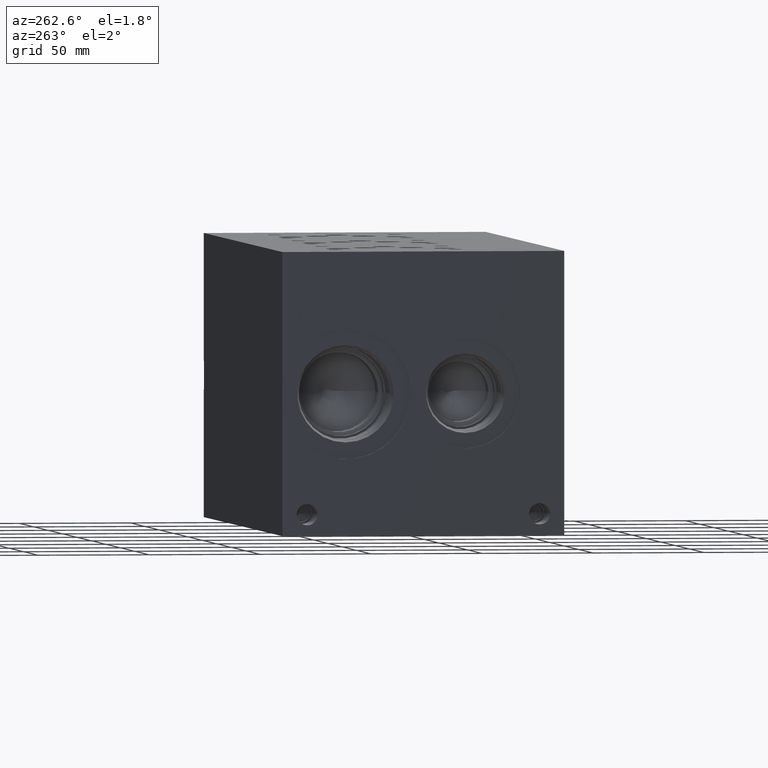
[diagram: clean part render]
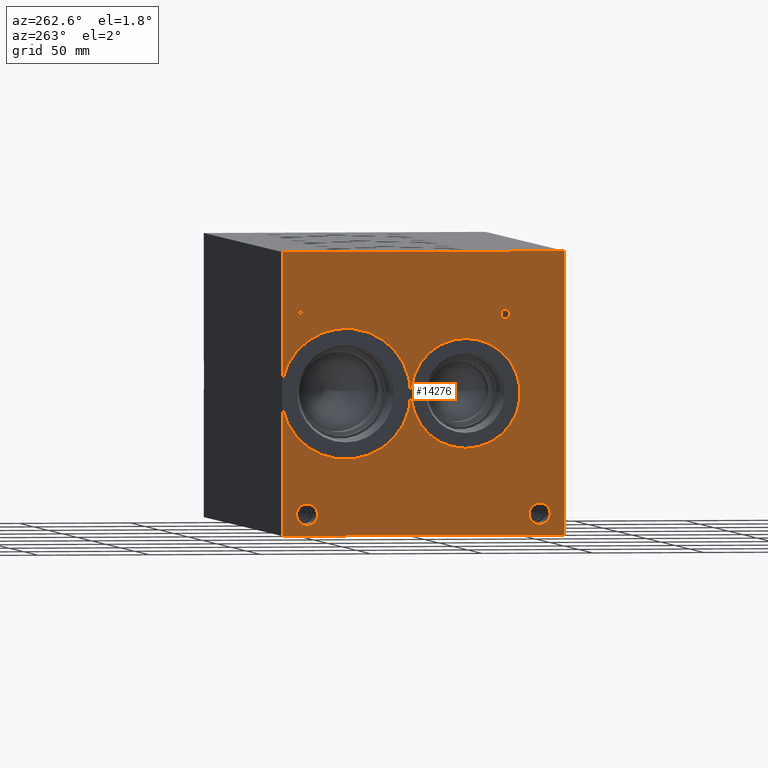
[diagram: same view with one face highlighted and labeled with its STEP entity id]
A machine part, auxiliary view. The second image highlights one B-rep face of the part: STEP entity #14276.
In plain terms, the highlighted planar face has unit normal (-1, 0, 0).
Its self-contained STEP definition (entity closure, byte-faithful):
#216=CIRCLE('',#15065,29.2862);
#217=CIRCLE('',#15066,4.7625);
#218=CIRCLE('',#15067,4.7625);
#219=CIRCLE('',#15068,4.7625);
#220=CIRCLE('',#15069,4.7625);
#221=CIRCLE('',#15070,24.5618);
#222=CIRCLE('',#15071,24.5618);
#605=FACE_BOUND('',#2146,.T.);
#606=FACE_BOUND('',#2147,.T.);
#607=FACE_BOUND('',#2148,.T.);
#608=FACE_BOUND('',#2149,.T.);
#609=FACE_BOUND('',#2150,.T.);
#750=B_SPLINE_CURVE_WITH_KNOTS('',2,(#19702,#19703,#19704,#19705),
 .UNSPECIFIED.,.F.,.F.,(3,1,3),(0.,1.,2.),.UNSPECIFIED.);
#752=B_SPLINE_CURVE_WITH_KNOTS('',2,(#19723,#19724,#19725,#19726),
 .UNSPECIFIED.,.F.,.F.,(3,1,3),(0.,1.,2.),.UNSPECIFIED.);
#754=B_SPLINE_CURVE_WITH_KNOTS('',2,(#19772,#19773,#19774,#19775),
 .UNSPECIFIED.,.F.,.F.,(3,1,3),(0.,1.,2.),.UNSPECIFIED.);
#756=B_SPLINE_CURVE_WITH_KNOTS('',2,(#19790,#19791,#19792,#19793),
 .UNSPECIFIED.,.F.,.F.,(3,1,3),(0.,1.,2.),.UNSPECIFIED.);
#1355=FACE_OUTER_BOUND('',#2145,.T.);
#2145=EDGE_LOOP('',(#9402,#9403,#9404,#9405,#9406,#9407));
#2146=EDGE_LOOP('',(#9408,#9409,#9410,#9411,#9412,#9413,#9414,#9415));
#2147=EDGE_LOOP('',(#9416,#9417));
#2148=EDGE_LOOP('',(#9418,#9419));
#2149=EDGE_LOOP('',(#9420,#9421));
#2150=EDGE_LOOP('',(#9422,#9423,#9424,#9425,#9426,#9427,#9428,#9429,#9430));
#3057=LINE('',#19552,#4368);
#3061=LINE('',#19560,#4372);
#3064=LINE('',#19566,#4375);
#3067=LINE('',#19572,#4378);
#3070=LINE('',#19578,#4381);
#3073=LINE('',#19584,#4384);
#3076=LINE('',#19590,#4387);
#3079=LINE('',#19595,#4390);
#3097=LINE('',#19735,#4408);
#3100=LINE('',#19741,#4411);
#3103=LINE('',#19747,#4414);
#3106=LINE('',#19753,#4417);
#3109=LINE('',#19759,#4420);
#3113=LINE('',#19804,#4424);
#3114=LINE('',#19806,#4425);
#3115=LINE('',#19808,#4426);
#3116=LINE('',#19810,#4427);
#3117=LINE('',#19811,#4428);
#4368=VECTOR('',#16117,10.);
#4372=VECTOR('',#16123,10.);
#4375=VECTOR('',#16128,10.);
#4378=VECTOR('',#16133,10.);
#4381=VECTOR('',#16138,10.);
#4384=VECTOR('',#16143,10.);
#4387=VECTOR('',#16148,10.);
#4390=VECTOR('',#16153,10.);
#4408=VECTOR('',#16181,10.);
#4411=VECTOR('',#16186,10.);
#4414=VECTOR('',#16191,10.);
#4417=VECTOR('',#16196,10.);
#4420=VECTOR('',#16201,10.);
#4424=VECTOR('',#16211,10.);
#4425=VECTOR('',#16212,10.);
#4426=VECTOR('',#16213,10.);
#4427=VECTOR('',#16214,10.);
#4428=VECTOR('',#16215,10.);
#5678=VERTEX_POINT('',#19550);
#5679=VERTEX_POINT('',#19551);
#5682=VERTEX_POINT('',#19559);
#5684=VERTEX_POINT('',#19565);
#5686=VERTEX_POINT('',#19571);
#5688=VERTEX_POINT('',#19577);
#5690=VERTEX_POINT('',#19583);
#5692=VERTEX_POINT('',#19589);
#5708=VERTEX_POINT('',#19700);
#5709=VERTEX_POINT('',#19701);
#5712=VERTEX_POINT('',#19722);
#5714=VERTEX_POINT('',#19734);
#5716=VERTEX_POINT('',#19740);
#5718=VERTEX_POINT('',#19746);
#5720=VERTEX_POINT('',#19752);
#5722=VERTEX_POINT('',#19758);
#5724=VERTEX_POINT('',#19771);
#5726=VERTEX_POINT('',#19800);
#5727=VERTEX_POINT('',#19801);
#5728=VERTEX_POINT('',#19803);
#5729=VERTEX_POINT('',#19805);
#5730=VERTEX_POINT('',#19807);
#5731=VERTEX_POINT('',#19809);
#5732=VERTEX_POINT('',#19812);
#5733=VERTEX_POINT('',#19813);
#5734=VERTEX_POINT('',#19816);
#5735=VERTEX_POINT('',#19817);
#5736=VERTEX_POINT('',#19820);
#5737=VERTEX_POINT('',#19821);
#7133=EDGE_CURVE('',#5678,#5679,#3057,.T.);
#7137=EDGE_CURVE('',#5682,#5678,#3061,.T.);
#7140=EDGE_CURVE('',#5684,#5682,#3064,.T.);
#7143=EDGE_CURVE('',#5686,#5684,#3067,.T.);
#7146=EDGE_CURVE('',#5688,#5686,#3070,.T.);
#7149=EDGE_CURVE('',#5690,#5688,#3073,.T.);
#7152=EDGE_CURVE('',#5692,#5690,#3076,.T.);
#7155=EDGE_CURVE('',#5679,#5692,#3079,.T.);
#7178=EDGE_CURVE('',#5708,#5709,#750,.T.);
#7182=EDGE_CURVE('',#5712,#5708,#752,.T.);
#7185=EDGE_CURVE('',#5714,#5712,#3097,.T.);
#7188=EDGE_CURVE('',#5716,#5714,#3100,.T.);
#7191=EDGE_CURVE('',#5718,#5716,#3103,.T.);
#7194=EDGE_CURVE('',#5720,#5718,#3106,.T.);
#7197=EDGE_CURVE('',#5722,#5720,#3109,.T.);
#7200=EDGE_CURVE('',#5724,#5722,#754,.T.);
#7203=EDGE_CURVE('',#5709,#5724,#756,.T.);
#7205=EDGE_CURVE('',#5726,#5727,#216,.T.);
#7206=EDGE_CURVE('',#5728,#5727,#3113,.T.);
#7207=EDGE_CURVE('',#5728,#5729,#3114,.T.);
#7208=EDGE_CURVE('',#5729,#5730,#3115,.T.);
#7209=EDGE_CURVE('',#5731,#5730,#3116,.T.);
#7210=EDGE_CURVE('',#5726,#5731,#3117,.T.);
#7211=EDGE_CURVE('',#5732,#5733,#217,.T.);
#7212=EDGE_CURVE('',#5733,#5732,#218,.T.);
#7213=EDGE_CURVE('',#5734,#5735,#219,.T.);
#7214=EDGE_CURVE('',#5735,#5734,#220,.T.);
#7215=EDGE_CURVE('',#5736,#5737,#221,.T.);
#7216=EDGE_CURVE('',#5737,#5736,#222,.T.);
#9402=ORIENTED_EDGE('',*,*,#7205,.T.);
#9403=ORIENTED_EDGE('',*,*,#7206,.F.);
#9404=ORIENTED_EDGE('',*,*,#7207,.T.);
#9405=ORIENTED_EDGE('',*,*,#7208,.T.);
#9406=ORIENTED_EDGE('',*,*,#7209,.F.);
#9407=ORIENTED_EDGE('',*,*,#7210,.F.);
#9408=ORIENTED_EDGE('',*,*,#7133,.T.);
#9409=ORIENTED_EDGE('',*,*,#7155,.T.);
#9410=ORIENTED_EDGE('',*,*,#7152,.T.);
#9411=ORIENTED_EDGE('',*,*,#7149,.T.);
#9412=ORIENTED_EDGE('',*,*,#7146,.T.);
#9413=ORIENTED_EDGE('',*,*,#7143,.T.);
#9414=ORIENTED_EDGE('',*,*,#7140,.T.);
#9415=ORIENTED_EDGE('',*,*,#7137,.T.);
#9416=ORIENTED_EDGE('',*,*,#7211,.T.);
#9417=ORIENTED_EDGE('',*,*,#7212,.T.);
#9418=ORIENTED_EDGE('',*,*,#7213,.T.);
#9419=ORIENTED_EDGE('',*,*,#7214,.T.);
#9420=ORIENTED_EDGE('',*,*,#7215,.T.);
#9421=ORIENTED_EDGE('',*,*,#7216,.T.);
#9422=ORIENTED_EDGE('',*,*,#7178,.T.);
#9423=ORIENTED_EDGE('',*,*,#7203,.T.);
#9424=ORIENTED_EDGE('',*,*,#7200,.T.);
#9425=ORIENTED_EDGE('',*,*,#7197,.T.);
#9426=ORIENTED_EDGE('',*,*,#7194,.T.);
#9427=ORIENTED_EDGE('',*,*,#7191,.T.);
#9428=ORIENTED_EDGE('',*,*,#7188,.T.);
#9429=ORIENTED_EDGE('',*,*,#7185,.T.);
#9430=ORIENTED_EDGE('',*,*,#7182,.T.);
#13338=PLANE('',#15064);
#14276=ADVANCED_FACE('',(#1355,#605,#606,#607,#608,#609),#13338,.T.);
#15064=AXIS2_PLACEMENT_3D('',#19799,#16207,#16208);
#15065=AXIS2_PLACEMENT_3D('',#19802,#16209,#16210);
#15066=AXIS2_PLACEMENT_3D('',#19814,#16216,#16217);
#15067=AXIS2_PLACEMENT_3D('',#19815,#16218,#16219);
#15068=AXIS2_PLACEMENT_3D('',#19818,#16220,#16221);
#15069=AXIS2_PLACEMENT_3D('',#19819,#16222,#16223);
#15070=AXIS2_PLACEMENT_3D('',#19822,#16224,#16225);
#15071=AXIS2_PLACEMENT_3D('',#19823,#16226,#16227);
#16117=DIRECTION('',(0.,1.,0.));
#16123=DIRECTION('',(0.,3.17280044688052E-15,-1.));
#16128=DIRECTION('',(0.,1.,0.));
#16133=DIRECTION('',(0.,0.,-1.));
#16138=DIRECTION('',(0.,-1.,-3.47984565141734E-15));
#16143=DIRECTION('',(0.,0.,1.));
#16148=DIRECTION('',(0.,1.,8.33818088455555E-15));
#16153=DIRECTION('',(0.,-3.17280044688052E-15,1.));
#16181=DIRECTION('',(0.,-1.,0.));
#16186=DIRECTION('',(0.,-2.79741238752512E-15,1.));
#16191=DIRECTION('',(0.,1.,0.));
#16196=DIRECTION('',(0.,1.876090699025E-15,-1.));
#16201=DIRECTION('',(0.,1.,0.));
#16207=DIRECTION('center_axis',(-1.,0.,0.));
#16208=DIRECTION('ref_axis',(0.,-1.,0.));
#16209=DIRECTION('center_axis',(1.,0.,0.));
#16210=DIRECTION('ref_axis',(0.,0.,1.));
#16211=DIRECTION('',(0.,0.,1.));
#16212=DIRECTION('',(0.,-1.,0.));
#16213=DIRECTION('',(0.,0.,1.));
#16214=DIRECTION('',(0.,-1.,0.));
#16215=DIRECTION('',(0.,0.,1.));
#16216=DIRECTION('center_axis',(1.,0.,0.));
#16217=DIRECTION('ref_axis',(0.,1.,0.));
#16218=DIRECTION('center_axis',(1.,0.,0.));
#16219=DIRECTION('ref_axis',(0.,1.,0.));
#16220=DIRECTION('center_axis',(1.,0.,0.));
#16221=DIRECTION('ref_axis',(0.,1.,0.));
#16222=DIRECTION('center_axis',(1.,0.,0.));
#16223=DIRECTION('ref_axis',(0.,1.,0.));
#16224=DIRECTION('center_axis',(1.,0.,0.));
#16225=DIRECTION('ref_axis',(0.,0.,1.));
#16226=DIRECTION('center_axis',(1.,0.,0.));
#16227=DIRECTION('ref_axis',(0.,0.,1.));
#19550=CARTESIAN_POINT('',(0.,118.569834728547,94.488));
#19551=CARTESIAN_POINT('',(0.,119.413756920087,94.488));
#19552=CARTESIAN_POINT('',(0.,122.784917364274,94.488));
#19559=CARTESIAN_POINT('',(0.,118.569834728547,100.086703319482));
#19560=CARTESIAN_POINT('',(0.,118.569834728547,50.0433516597408));
#19565=CARTESIAN_POINT('',(0.,116.439445781612,100.086703319482));
#19566=CARTESIAN_POINT('',(0.,121.719722890806,100.086703319482));
#19571=CARTESIAN_POINT('',(0.,116.439445781612,100.837999904633));
#19572=CARTESIAN_POINT('',(0.,116.439445781612,50.4189999523163));
#19577=CARTESIAN_POINT('',(0.,121.544145867022,100.837999904633));
#19578=CARTESIAN_POINT('',(0.,124.272072933511,100.837999904633));
#19583=CARTESIAN_POINT('',(0.,121.544145867022,100.086703319482));
#19584=CARTESIAN_POINT('',(0.,121.544145867022,50.0433516597408));
#19589=CARTESIAN_POINT('',(0.,119.413756920087,100.086703319482));
#19590=CARTESIAN_POINT('',(0.,123.206878460043,100.086703319482));
#19595=CARTESIAN_POINT('',(0.,119.413756920087,47.244));
#19700=CARTESIAN_POINT('',(0.,25.3094327976406,100.441768143971));
#19701=CARTESIAN_POINT('',(0.,24.552990345468,98.9237373726039));
#19702=CARTESIAN_POINT('Ctrl Pts',(0.,25.3094327976406,100.441768143971));
#19703=CARTESIAN_POINT('Ctrl Pts',(0.,24.9543679731514,100.199912393956));
#19704=CARTESIAN_POINT('Ctrl Pts',(0.,24.552990345468,99.4537616758269));
#19705=CARTESIAN_POINT('Ctrl Pts',(0.,24.552990345468,98.9237373726039));
#19722=CARTESIAN_POINT('',(0.,26.9715478456117,100.837999904633));
#19723=CARTESIAN_POINT('Ctrl Pts',(0.,26.9715478456117,100.837999904633));
#19724=CARTESIAN_POINT('Ctrl Pts',(0.,26.4055024732376,100.837999904633));
#19725=CARTESIAN_POINT('Ctrl Pts',(0.,25.613038951914,100.652748691856));
#19726=CARTESIAN_POINT('Ctrl Pts',(0.,25.3094327976406,100.441768143971));
#19734=CARTESIAN_POINT('',(0.,28.5667666223022,100.837999904633));
#19735=CARTESIAN_POINT('',(0.,77.7833833111511,100.837999904633));
#19740=CARTESIAN_POINT('',(0.,28.5667666223022,94.488));
#19741=CARTESIAN_POINT('',(0.,28.5667666223023,47.2439999999999));
#19746=CARTESIAN_POINT('',(0.,27.7228444307627,94.488));
#19747=CARTESIAN_POINT('',(0.,77.3614222153814,94.488));
#19752=CARTESIAN_POINT('',(0.,27.7228444307627,96.8550988299279));
#19753=CARTESIAN_POINT('',(0.,27.7228444307628,48.4275494149638));
#19758=CARTESIAN_POINT('',(0.,27.0075689147628,96.8550988299279));
#19759=CARTESIAN_POINT('',(0.,77.0037844573814,96.8550988299279));
#19771=CARTESIAN_POINT('',(0.,25.1087439837989,97.5137698086904));
#19772=CARTESIAN_POINT('Ctrl Pts',(0.,25.1087439837989,97.5137698086904));
#19773=CARTESIAN_POINT('Ctrl Pts',(0.,25.4380794731802,97.1895801863307));
#19774=CARTESIAN_POINT('Ctrl Pts',(0.,26.3283144679139,96.8550988299279));
#19775=CARTESIAN_POINT('Ctrl Pts',(0.,27.0075689147628,96.8550988299279));
#19790=CARTESIAN_POINT('Ctrl Pts',(0.,24.552990345468,98.9237373726039));
#19791=CARTESIAN_POINT('Ctrl Pts',(0.,24.552990345468,98.5120680108774));
#19792=CARTESIAN_POINT('Ctrl Pts',(0.,24.8463047656982,97.7710631597695));
#19793=CARTESIAN_POINT('Ctrl Pts',(0.,25.1087439837989,97.5137698086904));
#19799=CARTESIAN_POINT('Origin',(0.,127.,0.));
#19800=CARTESIAN_POINT('',(0.,127.,69.9148955907325));
#19801=CARTESIAN_POINT('',(0.,127.,57.0851044092675));
#19802=CARTESIAN_POINT('Origin',(0.,98.425,63.5));
#19803=CARTESIAN_POINT('',(0.,127.,0.));
#19804=CARTESIAN_POINT('',(0.,127.,0.));
#19805=CARTESIAN_POINT('',(0.,0.,0.));
#19806=CARTESIAN_POINT('',(0.,127.,0.));
#19807=CARTESIAN_POINT('',(0.,0.,127.));
#19808=CARTESIAN_POINT('',(0.,0.,0.));
#19809=CARTESIAN_POINT('',(0.,127.,127.));
#19810=CARTESIAN_POINT('',(0.,127.,127.));
#19811=CARTESIAN_POINT('',(0.,127.,0.));
#19812=CARTESIAN_POINT('',(0.,15.8623,9.52500000000001));
#19813=CARTESIAN_POINT('',(0.,6.3373,9.52500000000001));
#19814=CARTESIAN_POINT('Origin',(0.,11.0998,9.52500000000001));
#19815=CARTESIAN_POINT('Origin',(0.,11.0998,9.52500000000001));
#19816=CARTESIAN_POINT('',(0.,120.6373,9.52500000000001));
#19817=CARTESIAN_POINT('',(0.,111.1123,9.52500000000001));
#19818=CARTESIAN_POINT('Origin',(0.,115.8748,9.52500000000001));
#19819=CARTESIAN_POINT('Origin',(0.,115.8748,9.52500000000001));
#19820=CARTESIAN_POINT('',(0.,44.45,88.0618));
#19821=CARTESIAN_POINT('',(0.,44.45,38.9382));
#19822=CARTESIAN_POINT('Origin',(0.,44.45,63.5));
#19823=CARTESIAN_POINT('Origin',(0.,44.45,63.5));